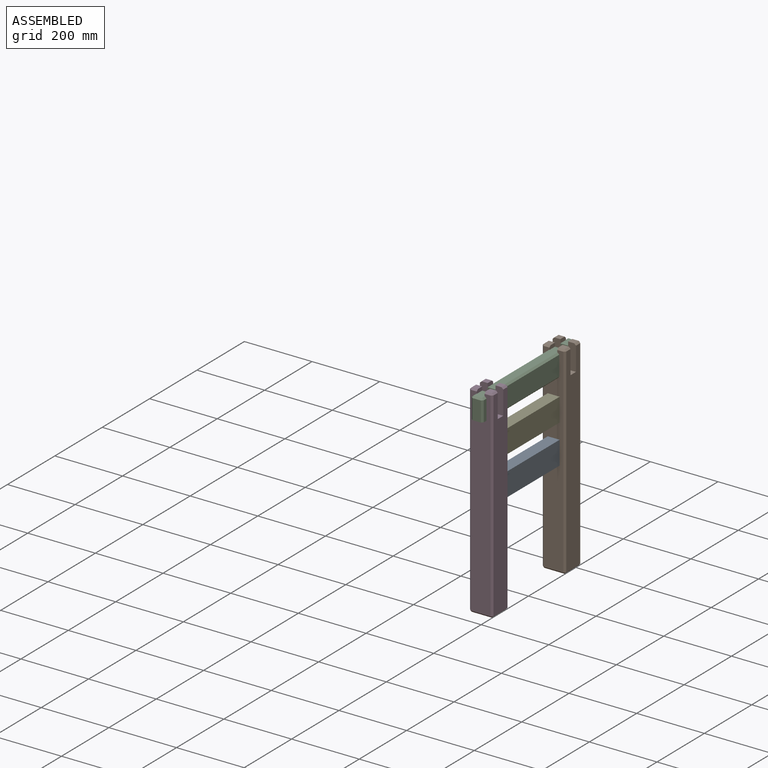
[diagram: assembled view]
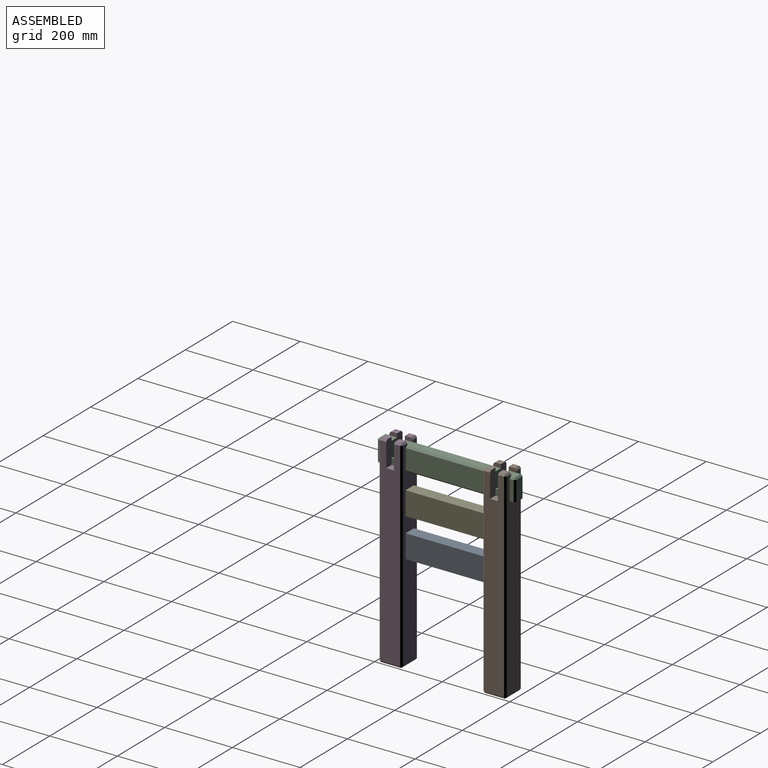
[diagram: assembled view, second angle]
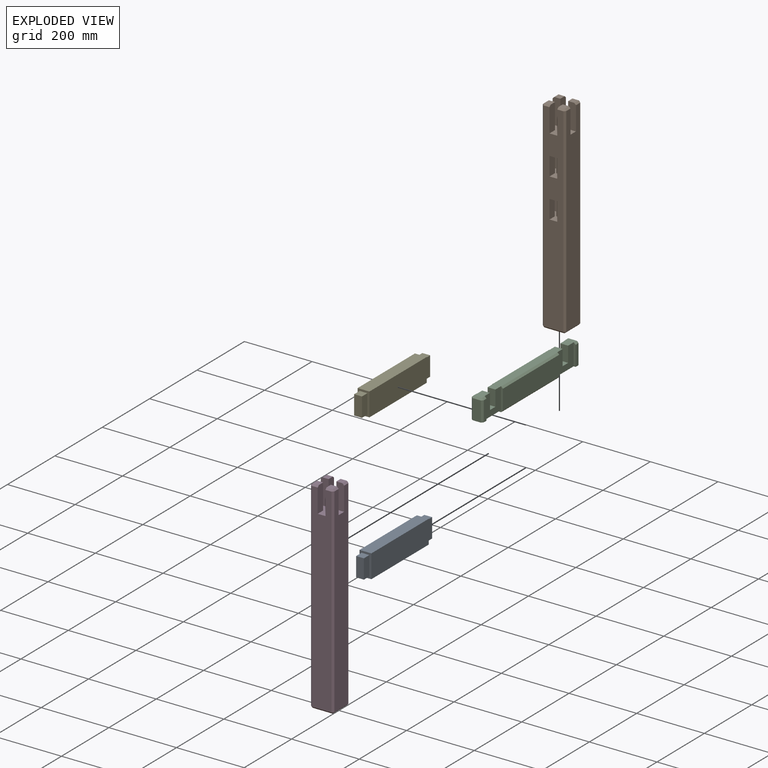
[diagram: exploded view]
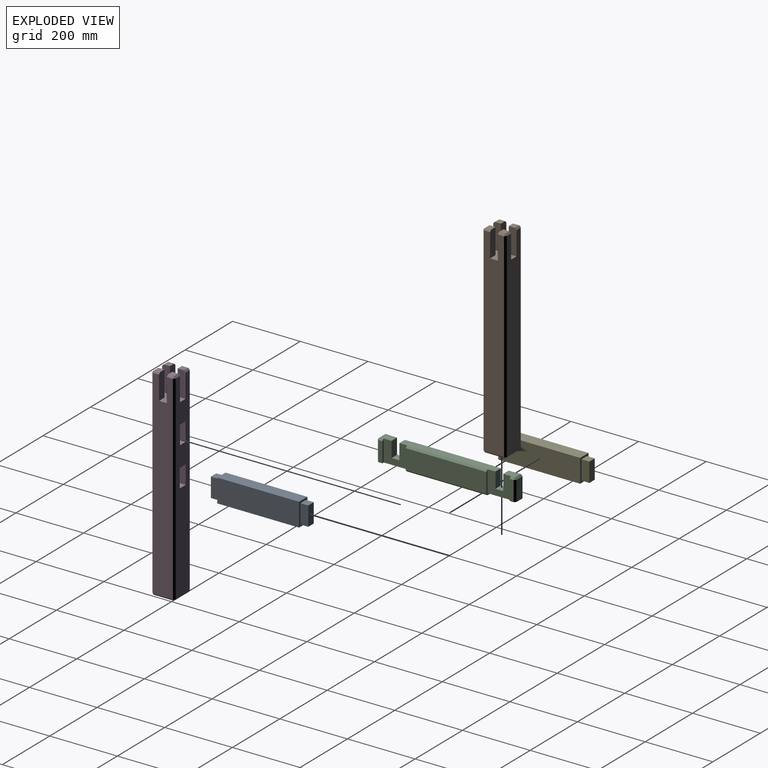
[diagram: exploded view, second angle]
ASSEMBLY  parts=5 mates=4
PART A: 16 faces, bbox 35x288x69 mm
  f0: plane 23x23mm, normal (0,0,-1), area 529mm2, adj f1,f3,f4,f9
  f1: plane 57x23mm, normal (1,0,0), area 1311mm2, adj f0,f2,f4,f9
  f2: plane 23x23mm, normal (0,0,1), area 529mm2, adj f1,f3,f4,f9
  f3: plane 57x23mm, normal (-1,0,0), area 1311mm2, adj f0,f2,f4,f9
  f4: plane 57x23mm, normal (0,-1,0), area 1311mm2, adj f0,f1,f2,f3
  f5: plane 242x35mm, normal (0,0,-1), area 8470mm2, adj f6,f8,f9,f15
  f6: plane 242x69mm, normal (1,0,0), area 16698mm2, adj f5,f7,f9,f15
  f7: plane 242x35mm, normal (0,0,1), area 8470mm2, adj f6,f8,f9,f15
  f8: plane 242x69mm, normal (-1,0,0), area 16698mm2, adj f5,f7,f9,f15
  f9: plane 69x35mm, normal (0,-1,0), area 1104mm2, adj f0,f1,f2,f3,f5,f6,f7,f8
  f10: plane 23x23mm, normal (0,0,-1), area 529mm2, adj f11,f13,f14,f15
  f11: plane 57x23mm, normal (1,0,0), area 1311mm2, adj f10,f12,f14,f15
  f12: plane 23x23mm, normal (0,0,1), area 529mm2, adj f11,f13,f14,f15
  f13: plane 57x23mm, normal (-1,0,0), area 1311mm2, adj f10,f12,f14,f15
  f14: plane 57x23mm, normal (0,1,0), area 1311mm2, adj f10,f11,f12,f13
  f15: plane 69x35mm, normal (0,1,0), area 1104mm2, adj f5,f6,f7,f8,f10,f11,f12,f13
PART B: 58 faces, bbox 69x69x600 mm
  f0: plane 18x18mm, normal (0,0,1), area 324mm2, adj f3,f32,f41,f42
  f1: plane 18x18mm, normal (0,0,1), area 324mm2, adj f4,f30,f34,f35
  f2: plane 590x59mm, normal (1,0,0), area 33200mm2, adj f23,f32,f33,f42,f43,f52,f53,f57
  f3: plane 75x23mm, normal (-1,0,0), area 1712.5mm2, adj f0,f9,f23,f32,f41
  f4: plane 75x23mm, normal (1,0,0), area 1712.5mm2, adj f1,f9,f23,f30,f35
  f5: plane 590x59mm, normal (-1,0,0), area 30560mm2, adj f13,f15,f17,f19,f23,f24,f25,f27
  f6: plane 55x21mm, normal (0,-1,0), area 1155mm2, adj f13,f14,f15,f29
  f7: plane 55x21mm, normal (0,-1,0), area 1155mm2, adj f17,f18,f19,f26
  f8: plane 18x18mm, normal (0,0,1), area 324mm2, adj f21,f33,f43,f44
  f9: plane 590x59mm, normal (0,-1,0), area 30670mm2, adj f3,f4,f13,f14,f15,f16,f17,f18
  f10: plane 590x59mm, normal (0,1,0), area 33200mm2, adj f21,f22,f23,f36,f44,f45,f53,f54
  f11: plane 59x59mm, normal (0,0,-1), area 3481mm2, adj f46,f51,f54,f57
  f12: plane 18x18mm, normal (0,0,1), area 324mm2, adj f22,f31,f36,f37
  f13: plane 46x46mm, normal (0,0,1), area 1146mm2, adj f5,f6,f9,f14,f16,f27,f28,f29
  f14: plane 55x25mm, normal (-1,0,0), area 1375mm2, adj f6,f9,f13,f15
  f15: plane 46x46mm, normal (0,0,-1), area 1146mm2, adj f5,f6,f9,f14,f16,f27,f28,f29
  f16: plane 55x23mm, normal (1,0,0), area 1265mm2, adj f9,f13,f15,f27
  f17: plane 47x46mm, normal (0,0,1), area 1194mm2, adj f5,f7,f9,f18,f20,f24,f25,f26
  f18: plane 55x25mm, normal (-1,0,0), area 1375mm2, adj f7,f9,f17,f19
  f19: plane 47x46mm, normal (0,0,-1), area 1194mm2, adj f5,f7,f9,f18,f20,f24,f25,f26
  f20: plane 55x22mm, normal (1,0,0), area 1210mm2, adj f9,f17,f19,f24
  f21: plane 75x23mm, normal (-1,0,0), area 1712.5mm2, adj f8,f10,f23,f33,f44
  f22: plane 75x23mm, normal (1,0,0), area 1712.5mm2, adj f10,f12,f23,f31,f36
  f23: plane 69x69mm, normal (0,0,1), area 2645mm2, adj f2,f3,f4,f5,f9,f10,f21,f22
  f24: plane 55x23mm, normal (0,1,0), area 1265mm2, adj f5,f17,f19,f20
  f25: plane 55x25mm, normal (0,-1,0), area 1375mm2, adj f5,f17,f19,f26
  f26: plane 55x22mm, normal (-1,0,0), area 1210mm2, adj f7,f17,f19,f25
  f27: plane 55x23mm, normal (0,1,0), area 1265mm2, adj f5,f13,f15,f16
  f28: plane 55x25mm, normal (0,-1,0), area 1375mm2, adj f5,f13,f15,f29
  f29: plane 55x21mm, normal (-1,0,0), area 1155mm2, adj f6,f13,f15,f28
  f30: plane 75x23mm, normal (0,1,0), area 1712.5mm2, adj f1,f4,f5,f23,f34
  f31: plane 75x23mm, normal (0,-1,0), area 1712.5mm2, adj f5,f12,f22,f23,f37
  f32: plane 75x23mm, normal (0,1,0), area 1712.5mm2, adj f0,f2,f3,f23,f42
  f33: plane 75x23mm, normal (0,-1,0), area 1712.5mm2, adj f2,f8,f21,f23,f43
  f34: plane 18x5mm, normal (-0.71,0,0.71), area 127.3mm2, adj f1,f5,f30,f38
  f35: plane 18x5mm, normal (0,-0.71,0.71), area 127.3mm2, adj f1,f4,f9,f38
  f36: plane 18x5mm, normal (0,0.71,0.71), area 127.3mm2, adj f10,f12,f22,f39
  f37: plane 18x5mm, normal (-0.71,0,0.71), area 127.3mm2, adj f5,f12,f31,f39
  f38: plane 5x5mm, normal (-0.58,-0.58,0.58), area 21.7mm2, adj f34,f35,f40
  f39: plane 5x5mm, normal (-0.58,0.58,0.58), area 21.7mm2, adj f36,f37,f45
  f40: plane 590x5mm, normal (-0.71,-0.71,0), area 4171.9mm2, adj f5,f9,f38,f47
  f41: plane 18x5mm, normal (0,-0.71,0.71), area 127.3mm2, adj f0,f3,f9,f48
  f42: plane 18x5mm, normal (0.71,0,0.71), area 127.3mm2, adj f0,f2,f32,f48
  f43: plane 18x5mm, normal (0.71,0,0.71), area 127.3mm2, adj f2,f8,f33,f49
  f44: plane 18x5mm, normal (0,0.71,0.71), area 127.3mm2, adj f8,f10,f21,f49
  f45: plane 590x5mm, normal (-0.71,0.71,0), area 4171.9mm2, adj f5,f10,f39,f50
  f46: plane 59x5mm, normal (-0.71,0,-0.71), area 417.2mm2, adj f5,f11,f47,f50
  f47: plane 5x5mm, normal (-0.58,-0.58,-0.58), area 21.7mm2, adj f40,f46,f51
  f48: plane 5x5mm, normal (0.58,-0.58,0.58), area 21.7mm2, adj f41,f42,f52
  f49: plane 5x5mm, normal (0.58,0.58,0.58), area 21.7mm2, adj f43,f44,f53
  f50: plane 5x5mm, normal (-0.58,0.58,-0.58), area 21.7mm2, adj f45,f46,f54
  f51: plane 59x5mm, normal (0,-0.71,-0.71), area 417.2mm2, adj f9,f11,f47,f55
  f52: plane 590x5mm, normal (0.71,-0.71,0), area 4171.9mm2, adj f2,f9,f48,f55
  f53: plane 590x5mm, normal (0.71,0.71,0), area 4171.9mm2, adj f2,f10,f49,f56
  f54: plane 59x5mm, normal (0,0.71,-0.71), area 417.2mm2, adj f10,f11,f50,f56
  f55: plane 5x5mm, normal (0.58,-0.58,-0.58), area 21.7mm2, adj f51,f52,f57
  f56: plane 5x5mm, normal (0.58,0.58,-0.58), area 21.7mm2, adj f53,f54,f57
  f57: plane 59x5mm, normal (0.71,0,-0.71), area 417.2mm2, adj f2,f11,f55,f56
PART C: 48 faces, bbox 35x410x69 mm
  f0: plane 59x25mm, normal (0,1,0), area 1475mm2, adj f1,f2,f40,f47
  f1: plane 59x5mm, normal (-0.71,0.71,0), area 417.2mm2, adj f0,f36,f39,f47
  f2: plane 59x5mm, normal (0.71,0.71,0), area 417.2mm2, adj f0,f34,f41,f47
  f3: plane 64x6mm, normal (0,-1,0), area 371.5mm2, adj f4,f34,f35,f42,f47
  f4: plane 69x64mm, normal (1,0,0), area 3358mm2, adj f3,f14,f35,f37,f43,f44,f45,f47
  f5: plane 64x6mm, normal (0,-1,0), area 371.5mm2, adj f6,f35,f36,f38,f47
  f6: plane 69x64mm, normal (-1,0,0), area 3358mm2, adj f5,f14,f35,f37,f43,f44,f45,f47
  f7: plane 59x12mm, normal (1,0,0), area 708mm2, adj f10,f24,f27,f46
  f8: plane 59x12mm, normal (-1,0,0), area 708mm2, adj f12,f21,f22,f46
  f9: plane 238x25mm, normal (0,0,-1), area 5950mm2, adj f19,f28,f29,f37
  f10: plane 64x6mm, normal (0,1,0), area 371.5mm2, adj f7,f11,f17,f27,f46
  f11: plane 69x64mm, normal (1,0,0), area 3358mm2, adj f10,f14,f17,f19,f31,f32,f33,f46
  f12: plane 64x6mm, normal (0,1,0), area 371.5mm2, adj f8,f13,f17,f22,f46
  f13: plane 69x64mm, normal (-1,0,0), area 3358mm2, adj f12,f14,f17,f19,f31,f32,f33,f46
  f14: plane 284x25mm, normal (0,0,1), area 7008mm2, adj f4,f6,f11,f13,f19,f20,f30,f31
  f15: plane 238x59mm, normal (-1,0,0), area 14042mm2, adj f19,f20,f28,f37
  f16: plane 238x59mm, normal (1,0,0), area 14042mm2, adj f19,f29,f30,f37
  f17: plane 35x25mm, normal (0,0,1), area 829mm2, adj f10,f11,f12,f13,f22,f25,f27,f33
  f18: plane 59x25mm, normal (0,-1,0), area 1475mm2, adj f21,f24,f25,f46
  f19: plane 69x35mm, normal (0,-1,0), area 893mm2, adj f9,f11,f13,f14,f15,f16,f20,f28
  f20: plane 238x5mm, normal (-0.71,0,0.71), area 1682.9mm2, adj f14,f15,f19,f37
  f21: plane 59x5mm, normal (-0.71,-0.71,0), area 417.2mm2, adj f8,f18,f23,f46
  f22: plane 12x5mm, normal (-0.71,0,0.71), area 84.9mm2, adj f8,f12,f17,f23
  f23: plane 5x5mm, normal (-0.58,-0.58,0.58), area 21.7mm2, adj f21,f22,f25
  f24: plane 59x5mm, normal (0.71,-0.71,0), area 417.2mm2, adj f7,f18,f26,f46
  f25: plane 25x5mm, normal (0,-0.71,0.71), area 176.8mm2, adj f17,f18,f23,f26
  f26: plane 5x5mm, normal (0.58,-0.58,0.58), area 21.7mm2, adj f24,f25,f27
  f27: plane 12x5mm, normal (0.71,0,0.71), area 84.9mm2, adj f7,f10,f17,f26
  f28: plane 238x5mm, normal (-0.71,0,-0.71), area 1682.9mm2, adj f9,f15,f19,f37
  f29: plane 238x5mm, normal (0.71,0,-0.71), area 1682.9mm2, adj f9,f16,f19,f37
  f30: plane 238x5mm, normal (0.71,0,0.71), area 1682.9mm2, adj f14,f16,f19,f37
  f31: plane 46x23mm, normal (0,-1,0), area 1058mm2, adj f11,f13,f14,f32
  f32: plane 23x23mm, normal (0,0,1), area 529mm2, adj f11,f13,f31,f33
  f33: plane 46x23mm, normal (0,1,0), area 1058mm2, adj f11,f13,f17,f32
  f34: plane 59x12mm, normal (1,0,0), area 708mm2, adj f2,f3,f42,f47
  f35: plane 35x25mm, normal (0,0,1), area 829mm2, adj f3,f4,f5,f6,f38,f40,f42,f45
  f36: plane 59x12mm, normal (-1,0,0), area 708mm2, adj f1,f5,f38,f47
  f37: plane 69x35mm, normal (0,1,0), area 893mm2, adj f4,f6,f9,f14,f15,f16,f20,f28
  f38: plane 12x5mm, normal (-0.71,0,0.71), area 84.9mm2, adj f5,f35,f36,f39
  f39: plane 5x5mm, normal (-0.58,0.58,0.58), area 21.7mm2, adj f1,f38,f40
  f40: plane 25x5mm, normal (0,0.71,0.71), area 176.8mm2, adj f0,f35,f39,f41
  f41: plane 5x5mm, normal (0.58,0.58,0.58), area 21.7mm2, adj f2,f40,f42
  f42: plane 12x5mm, normal (0.71,0,0.71), area 84.9mm2, adj f3,f34,f35,f41
  f43: plane 46x23mm, normal (0,1,0), area 1058mm2, adj f4,f6,f14,f44
  f44: plane 23x23mm, normal (0,0,1), area 529mm2, adj f4,f6,f43,f45
  f45: plane 46x23mm, normal (0,-1,0), area 1058mm2, adj f4,f6,f35,f44
  f46: plane 86x35mm, normal (0,0,-1), area 2157mm2, adj f7,f8,f10,f11,f12,f13,f18,f19
  f47: plane 86x35mm, normal (0,0,-1), area 2157mm2, adj f0,f1,f2,f3,f4,f5,f6,f34
PART D: same geometry as B
PART E: same geometry as A
PLACE A t=(-114.34,-1554.16,-115)mm
PLACE B t=(382.37,164.97,162.5)mm
PLACE C t=(-110.19,-1074.92,151.5)mm
PLACE D rot(axis=(0,0,-1),90deg) t=(382.37,-142.03,162.5)mm
PLACE E t=(-114.34,-1554.16,0)mm
MATE fastened E.f4 <-> D.f29  axis (0,-1,0) through (383.37,-132.53,0)mm
MATE fastened C.f46 <-> D.f23  axis (0,0,-1) through (382.37,-142.03,87.5)mm
MATE fastened A.f14 <-> B.f7  axis (0,1,0) through (383.37,155.47,-115)mm
MATE fastened B.f6 <-> E.f14  axis (0,-1,0) through (383.37,155.47,0)mm
